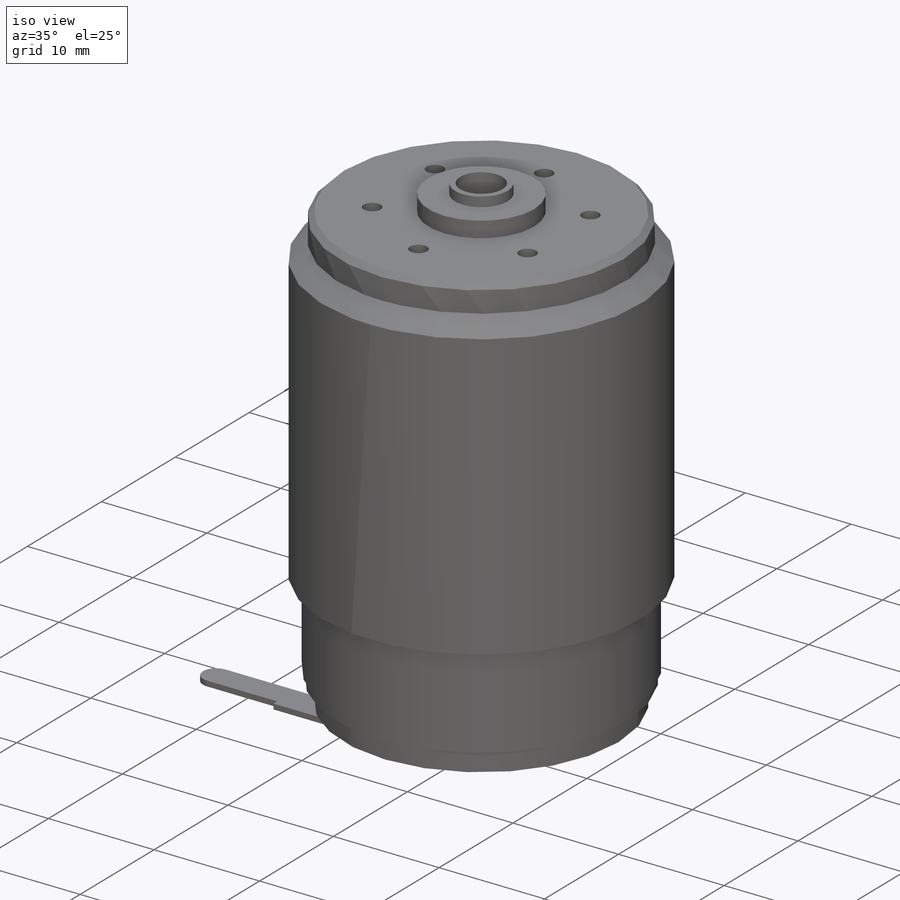
[diagram: iso view]
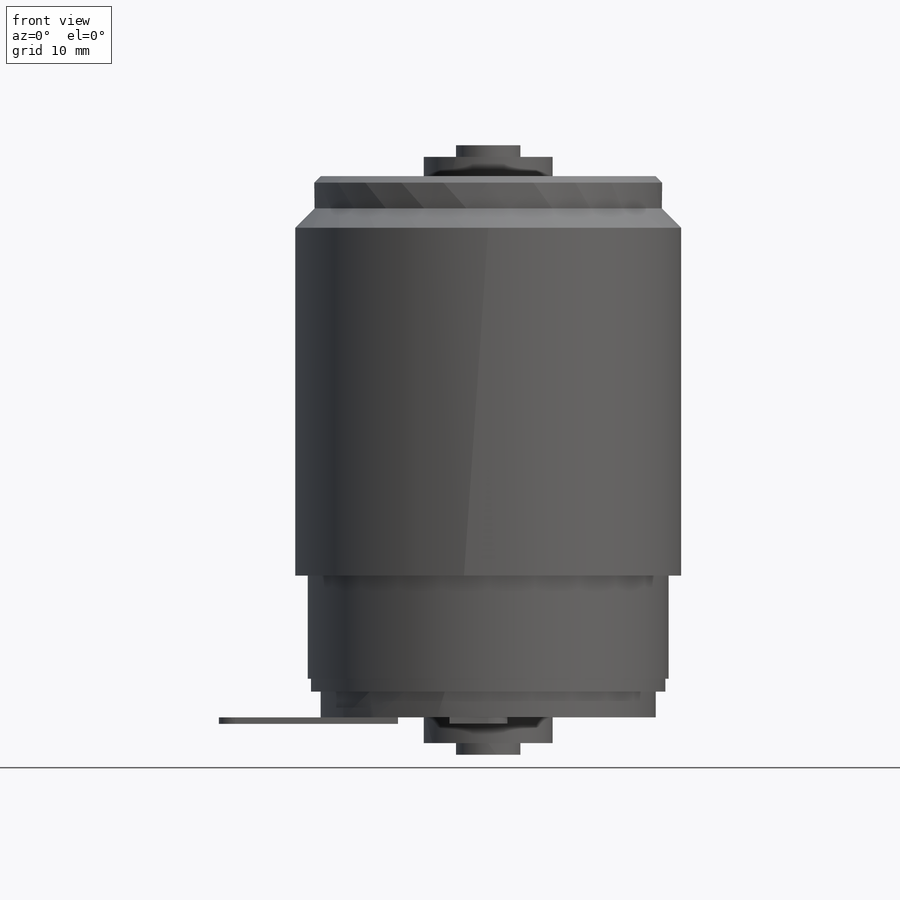
[diagram: front view]
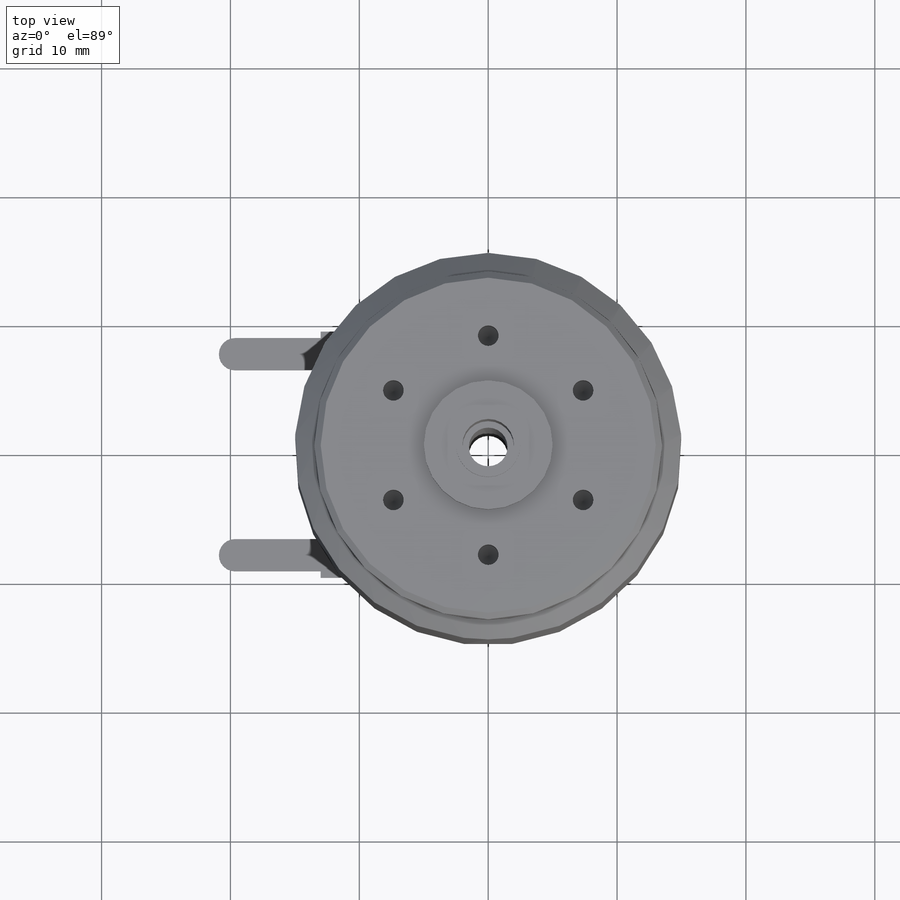
[diagram: top view]
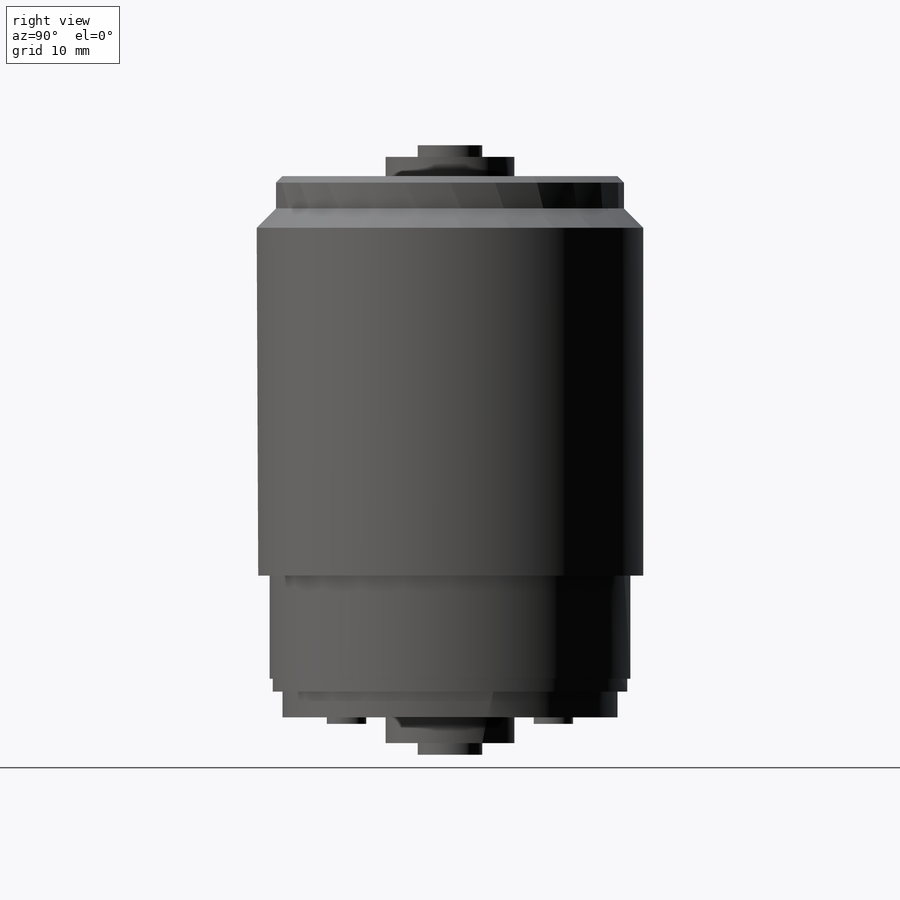
[diagram: right view]
SOLIDWORKS PART (.sldprt)
format: sldprt  version: not decoded by parser v0  size: 434,176 bytes
history: native  units: mm
features: sketch x16, thread x8, extrude x6, cut_extrude x6, plane x3, chamfer x2, hole x2, material x1 (+11 scaffold rows collapsed)
feature tree (55):
  scaffold x11  (default folders/planes/origin — collapsed)
  material  "Matériau <non spécifié>"
  plane  "Face"
  plane  "Dessus"
  plane  "Droite"
  sketch  "Esquisse1"  dims[D1=30.0mm]
  extrude  "Extrusion1"  Depth=42mm
  sketch  "Esquisse2"  dims[D1=27.0mm]
  cut_extrude  "Enlèv. mat.-Extru.1"  Depth=4mm
  sketch  "Esquisse3"  dims[D1=26.0mm]
  cut_extrude  "Enlèv. mat.-Extru.2"  Depth=2mm
  sketch  "Esquisse4"  dims[D1=27.5mm]
  cut_extrude  "Enlèv. mat.-Extru.3"  Depth=1mm
  sketch  "Esquisse5"  dims[D1=28.0mm]
  cut_extrude  "Enlèv. mat.-Extru.4"  Depth=8mm
  chamfer  "Chanfrein1"  Distance=0.5mm Angle=45deg
  chamfer  "Chanfrein2"  Distance=1.5mm Angle=45deg
  sketch  "Esquisse6"  dims[D1=10.0mm]
  extrude  "Extrusion2"  Depth=1.5mm
  sketch  "Esquisse7"  dims[D1=10.0mm]
  extrude  "Extrusion3"  Depth=2mm
  sketch  "Esquisse8"  dims[D1=5.0mm]
  extrude  "Extrusion4"  Depth=0.9mm
  sketch  "Esquisse9"  dims[D1=5.0mm]
  extrude  "Extrusion5"  Depth=0.9mm
  sketch  "Esquisse10"  dims[D1=3.0mm]
  cut_extrude  "Enlèv. mat.-Extru.5"  [1 undecoded]
  sketch  "Esquisse11"  dims[D1=4.0mm]
  cut_extrude  "Enlèv. mat.-Extru.6"  Depth=10mm
  hole  "Trou taraudé M21"  Diameter=1.6mm Depth=3.2mm
  sketch  "Esquisse13"  dims[c1.D1=17.0mm c1.D2=17.0mm c2.D2=60.0deg c2.D3=17.0mm c3.D3=60.0deg]
  sketch  "Esquisse12"  dims[hole-wizard template sketch: 50 standard entries collapsed; hole parameters above]
  thread  "Filetage de perçage1"  Diameter=2mm  [1 undecoded]
  thread  "Filetage de perçage2"  Diameter=2mm  [1 undecoded]
  thread  "Filetage de perçage3"  Diameter=2mm  [1 undecoded]
  thread  "Filetage de perçage4"  Diameter=2mm  [1 undecoded]
  thread  "Filetage de perçage5"  Diameter=2mm  [1 undecoded]
  thread  "Filetage de perçage6"  Diameter=2mm  [1 undecoded]
  hole  "Trou taraudé M22"  Diameter=1.6mm Depth=2.2mm
  sketch  "Esquisse15"  dims[D1=20.0mm]
  sketch  "Esquisse14"  dims[hole-wizard template sketch: 50 standard entries collapsed; hole parameters above]
  thread  "Filetage de perçage7"  Diameter=1mm  [1 undecoded]
  thread  "Filetage de perçage8"  Diameter=1mm  [1 undecoded]
  sketch  "Esquisse16"  dims[D4=1.5mm D1=8.0mm D2=3.0mm D3=3.0mm D5=0.5mm D6=7.8mm D7=19.65mm D8=7.0mm D9=6.0mm]
  extrude  "Extrusion6"  Depth=0.5mm
decode coverage: 39 of 40 modeling features carry decoded parameters
note: ~ marks probable driven/reference dimensions
note: 9 parameter values undecoded
note: suppression state not decoded; provenance and decode notes live in map.json
